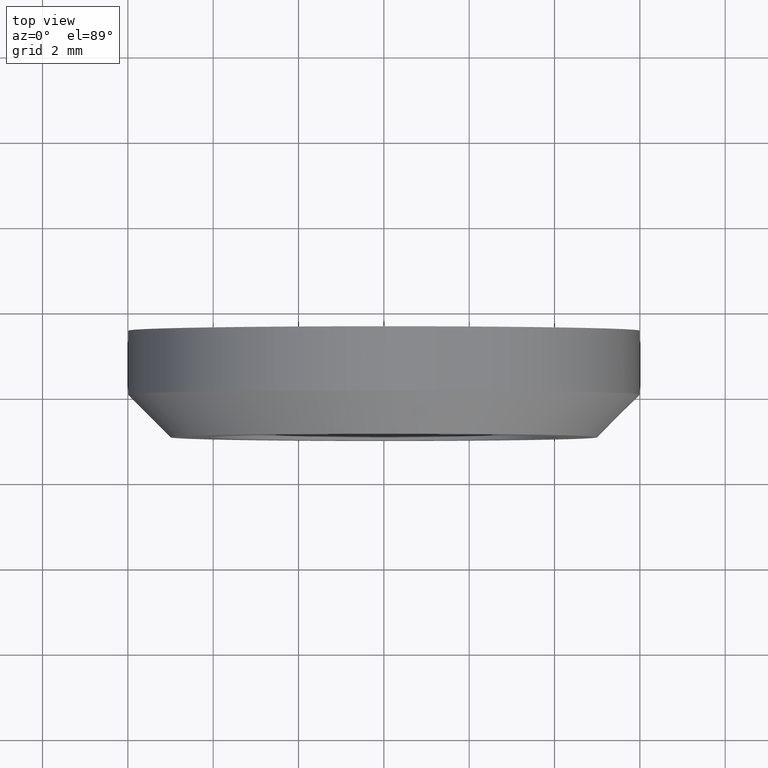
[diagram: clean part render]
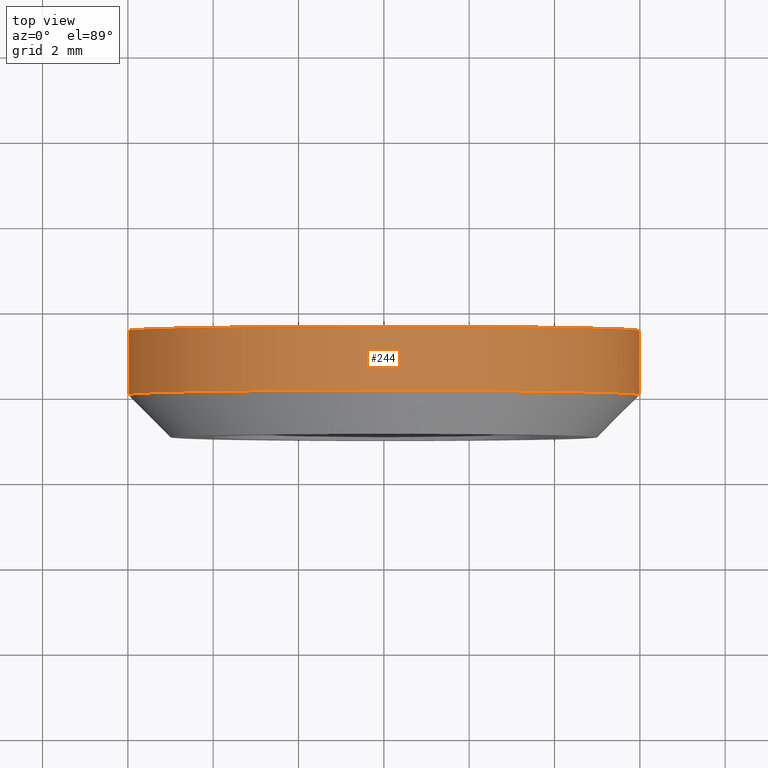
[diagram: same view with one face highlighted and labeled with its STEP entity id]
A machine part, top view. The second image highlights one B-rep face of the part: STEP entity #244.
In plain terms, the highlighted face is a freeform B-spline surface patch.
Its self-contained STEP definition (entity closure, byte-faithful):
#62=CARTESIAN_POINT('',(2.109705219126436,1.517137E-014,-5.616862459450364));
#63=VERTEX_POINT('',#62);
#79=CARTESIAN_POINT('',(-5.988808790531301,3.377125E-013,-0.366291237210561));
#80=VERTEX_POINT('',#79);
#94=CARTESIAN_POINT('',(-5.988808919991055,1.500000000000000,-0.366289120546966));
#95=VERTEX_POINT('',#94);
#96=CARTESIAN_POINT('',(-5.988808790531301,3.377125E-013,-0.366291237210561));
#97=CARTESIAN_POINT('',(-5.988808919991055,1.500000000000000,-0.366289120546966));
#98=QUASI_UNIFORM_CURVE('',1,(#96,#97),.UNSPECIFIED.,.F.,.U.);
#99=EDGE_CURVE('',#80,#95,#98,.T.);
#116=CARTESIAN_POINT('',(2.109705698970068,1.500000000000000,-5.616862279220308));
#117=VERTEX_POINT('',#116);
#131=CARTESIAN_POINT('',(2.109705219126436,1.517137E-014,-5.616862459450364));
#132=CARTESIAN_POINT('',(2.109705698970068,1.500000000000000,-5.616862279220308));
#133=QUASI_UNIFORM_CURVE('',1,(#131,#132),.UNSPECIFIED.,.F.,.U.);
#134=EDGE_CURVE('',#63,#117,#133,.T.);
#139=CARTESIAN_POINT('',(-5.988808790531200,-0.037500000000000,-0.366291237209142));
#140=CARTESIAN_POINT('',(-6.355100027740342,-0.037500000000000,5.622517553322059));
#141=CARTESIAN_POINT('',(-0.366291237209142,-0.037500000000000,5.988808790531200));
#142=CARTESIAN_POINT('',(5.622517553322059,-0.037500000000000,6.355100027740342));
#143=CARTESIAN_POINT('',(5.988808790531200,-0.037500000000000,0.366291237209142));
#144=CARTESIAN_POINT('',(6.259423337216051,-0.037500000000000,-4.058217490818392));
#145=CARTESIAN_POINT('',(2.109707846349432,-0.037500000000000,-5.616861472659944));
#146=CARTESIAN_POINT('',(-5.988808790531200,1.538437500000000,-0.366291237209142));
#147=CARTESIAN_POINT('',(-6.355100027740342,1.538437500000001,5.622517553322059));
#148=CARTESIAN_POINT('',(-0.366291237209142,1.538437500000000,5.988808790531200));
#149=CARTESIAN_POINT('',(5.622517553322059,1.538437500000001,6.355100027740342));
#150=CARTESIAN_POINT('',(5.988808790531200,1.538437500000000,0.366291237209142));
#151=CARTESIAN_POINT('',(6.259423337216051,1.538437500000001,-4.058217490818392));
#152=CARTESIAN_POINT('',(2.109707846349432,1.538437500000001,-5.616861472659944));
#160=(BOUNDED_SURFACE()B_SPLINE_SURFACE(2,1,((#139,#146),(#140,#147),(#141,#148),(#142,#149),(#143,#150),(#144,#151),(#145,#152)),.UNSPECIFIED.,.F.,.F.,.U.)B_SPLINE_SURFACE_WITH_KNOTS((3,2,2,3),(2,2),(0.0,9.941125496954278,19.882250993908560,27.835151391471982),(0.0,1.0),.UNSPECIFIED.)GEOMETRIC_REPRESENTATION_ITEM()RATIONAL_B_SPLINE_SURFACE(((1.0,1.0),(0.707106781186548,0.707106781186548),(1.0,1.0),(0.707106781186548,0.707106781186548),(1.0,1.0),(0.765685424949238,0.765685424949238),(0.906274169979695,0.906274169979695)))REPRESENTATION_ITEM('')SURFACE());
#161=CARTESIAN_POINT('',(5.958057158182076,1.184327E-012,0.708205407949929));
#162=VERTEX_POINT('',#161);
#163=CARTESIAN_POINT('',(5.958057158182077,1.184327E-012,0.708205407949929));
#164=CARTESIAN_POINT('',(6.000000000000001,0.0,0.355344717920797));
#165=CARTESIAN_POINT('',(6.0,0.0,0.0));
#166=CARTESIAN_POINT('',(6.0,0.0,-4.155659650516266));
#167=CARTESIAN_POINT('',(2.109705219126437,1.517137E-014,-5.616862459450364));
#175=(BOUNDED_CURVE()B_SPLINE_CURVE(2,(#163,#164,#165,#166,#167),.UNSPECIFIED.,.F.,.U.)B_SPLINE_CURVE_WITH_KNOTS((3,2,3),(0.229562473515120,0.250000000000000,0.440284244778167),.UNSPECIFIED.)CURVE()GEOMETRIC_REPRESENTATION_ITEM()RATIONAL_B_SPLINE_CURVE((0.956026754186858,0.976055948333033,1.0,0.777068140229744,0.893499645046490))REPRESENTATION_ITEM(''));
#176=EDGE_CURVE('',#162,#63,#175,.T.);
#177=ORIENTED_EDGE('',*,*,#176,.T.);
#178=ORIENTED_EDGE('',*,*,#134,.T.);
#179=CARTESIAN_POINT('',(0.0,1.500000000000000,6.0));
#180=VERTEX_POINT('',#179);
#181=CARTESIAN_POINT('',(0.0,1.500000000000000,6.0));
#182=CARTESIAN_POINT('',(6.0,1.500000000000000,6.0));
#183=CARTESIAN_POINT('',(6.0,1.500000000000000,0.0));
#184=CARTESIAN_POINT('',(6.0,1.500000000000000,-4.155659271285729));
#185=CARTESIAN_POINT('',(2.109705698970068,1.500000000000000,-5.616862279220308));
#193=(BOUNDED_CURVE()B_SPLINE_CURVE(2,(#181,#182,#183,#184,#185),.UNSPECIFIED.,.F.,.U.)B_SPLINE_CURVE_WITH_KNOTS((3,2,3),(0.0,0.250000000000000,0.440284231284646),.UNSPECIFIED.)CURVE()GEOMETRIC_REPRESENTATION_ITEM()RATIONAL_B_SPLINE_CURVE((1.0,0.707106781186548,1.0,0.777068156038386,0.893499628533607))REPRESENTATION_ITEM(''));
#194=EDGE_CURVE('',#180,#117,#193,.T.);
#195=ORIENTED_EDGE('',*,*,#194,.F.);
#196=CARTESIAN_POINT('',(-5.988808919991055,1.500000000000000,-0.366289120546966));
#197=CARTESIAN_POINT('',(-6.0,1.500000000000000,-0.183315518493018));
#198=CARTESIAN_POINT('',(-6.0,1.500000000000000,0.0));
#199=CARTESIAN_POINT('',(-6.0,1.500000000000000,6.0));
#200=CARTESIAN_POINT('',(0.0,1.500000000000000,6.0));
#208=(BOUNDED_CURVE()B_SPLINE_CURVE(2,(#196,#197,#198,#199,#200),.UNSPECIFIED.,.F.,.U.)B_SPLINE_CURVE_WITH_KNOTS((3,2,3),(0.739333023226263,0.750000000000000,1.0),.UNSPECIFIED.)CURVE()GEOMETRIC_REPRESENTATION_ITEM()RATIONAL_B_SPLINE_CURVE((0.976072172374189,0.987502859350927,1.0,0.707106781186548,1.0))REPRESENTATION_ITEM(''));
#209=EDGE_CURVE('',#95,#180,#208,.T.);
#210=ORIENTED_EDGE('',*,*,#209,.F.);
#211=ORIENTED_EDGE('',*,*,#99,.F.);
#212=CARTESIAN_POINT('',(0.0,0.0,6.0));
#213=VERTEX_POINT('',#212);
#214=CARTESIAN_POINT('',(-5.988808790531301,3.377125E-013,-0.366291237210561));
#215=CARTESIAN_POINT('',(-6.0,0.0,-0.183316579794358));
#216=CARTESIAN_POINT('',(-6.0,0.0,0.0));
#217=CARTESIAN_POINT('',(-6.0,0.0,6.0));
#218=CARTESIAN_POINT('',(0.0,0.0,6.0));
#226=(BOUNDED_CURVE()B_SPLINE_CURVE(2,(#214,#215,#216,#217,#218),.UNSPECIFIED.,.F.,.U.)B_SPLINE_CURVE_WITH_KNOTS((3,2,3),(0.739332962241806,0.750000000000000,1.0),.UNSPECIFIED.)CURVE()GEOMETRIC_REPRESENTATION_ITEM()RATIONAL_B_SPLINE_CURVE((0.976072041672854,0.987502787903192,1.0,0.707106781186548,1.0))REPRESENTATION_ITEM(''));
#227=EDGE_CURVE('',#80,#213,#226,.T.);
#228=ORIENTED_EDGE('',*,*,#227,.T.);
#229=CARTESIAN_POINT('',(0.0,0.0,6.0));
#230=CARTESIAN_POINT('',(5.329047155691565,0.0,6.000000000000001));
#231=CARTESIAN_POINT('',(5.958057158182076,1.184327E-012,0.708205407949929));
#239=(BOUNDED_CURVE()B_SPLINE_CURVE(2,(#229,#230,#231),.UNSPECIFIED.,.F.,.U.)B_SPLINE_CURVE_WITH_KNOTS((3,3),(0.0,0.229562473515120),.UNSPECIFIED.)CURVE()GEOMETRIC_REPRESENTATION_ITEM()RATIONAL_B_SPLINE_CURVE((1.0,0.731050832853514,0.956026754186859))REPRESENTATION_ITEM(''));
#240=EDGE_CURVE('',#213,#162,#239,.T.);
#241=ORIENTED_EDGE('',*,*,#240,.T.);
#242=EDGE_LOOP('',(#177,#178,#195,#210,#211,#228,#241));
#243=FACE_OUTER_BOUND('',#242,.T.);
#244=ADVANCED_FACE('',(#243),#160,.T.);